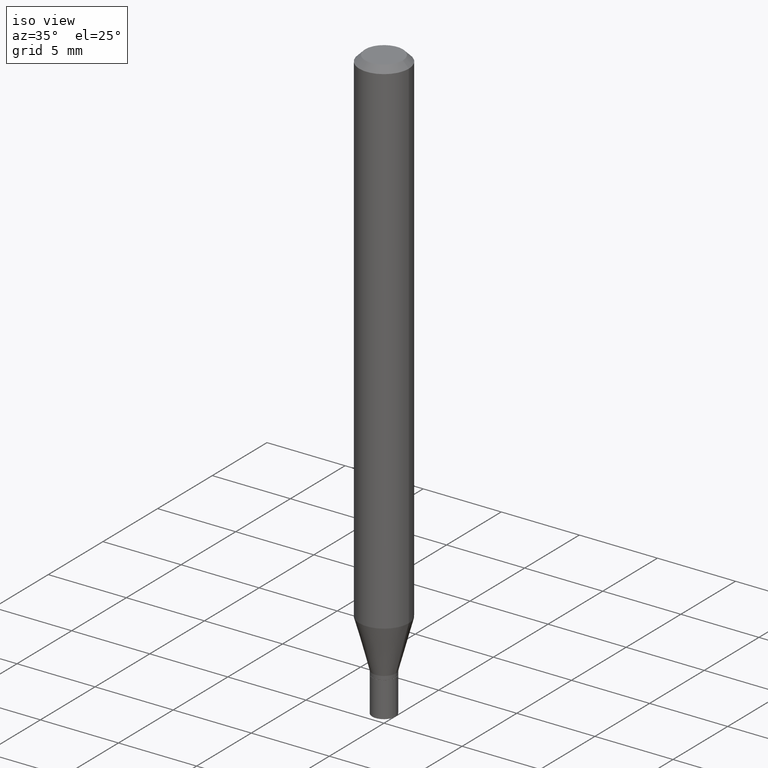
[diagram: clean part render]
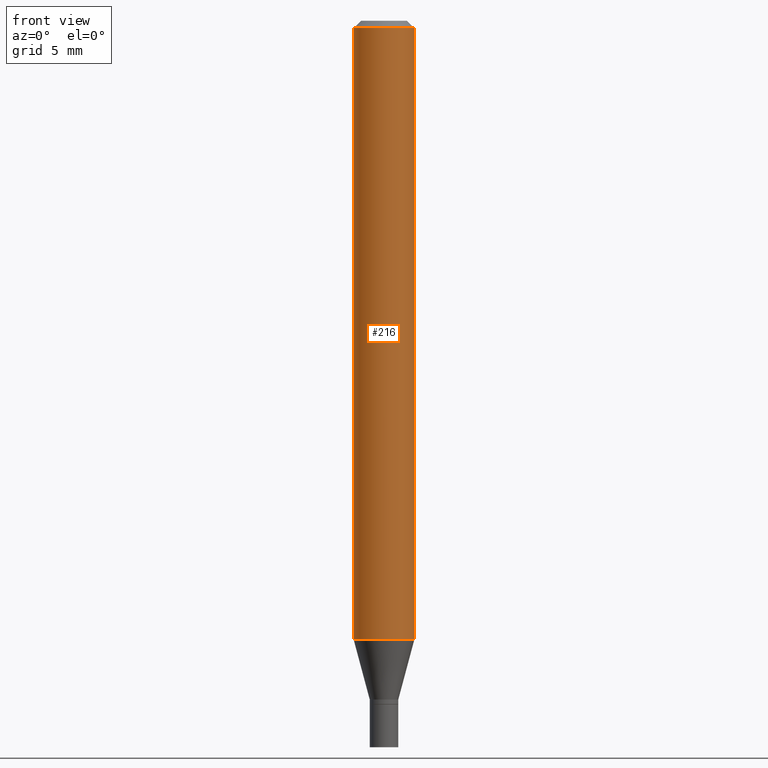
[diagram: tour spotlight — one face highlighted and labeled with its STEP entity id]
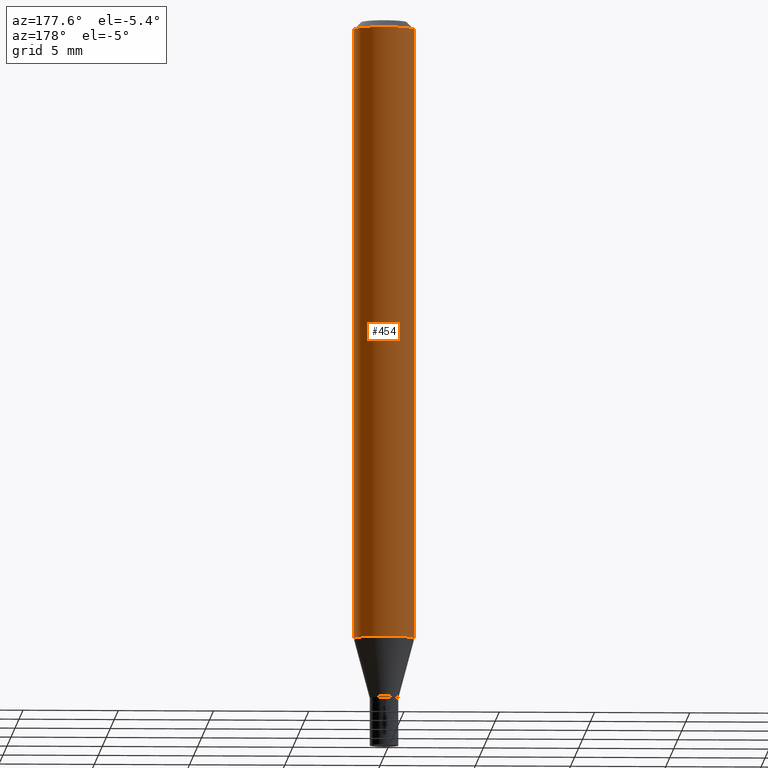
[diagram: tour spotlight — one face highlighted and labeled with its STEP entity id]
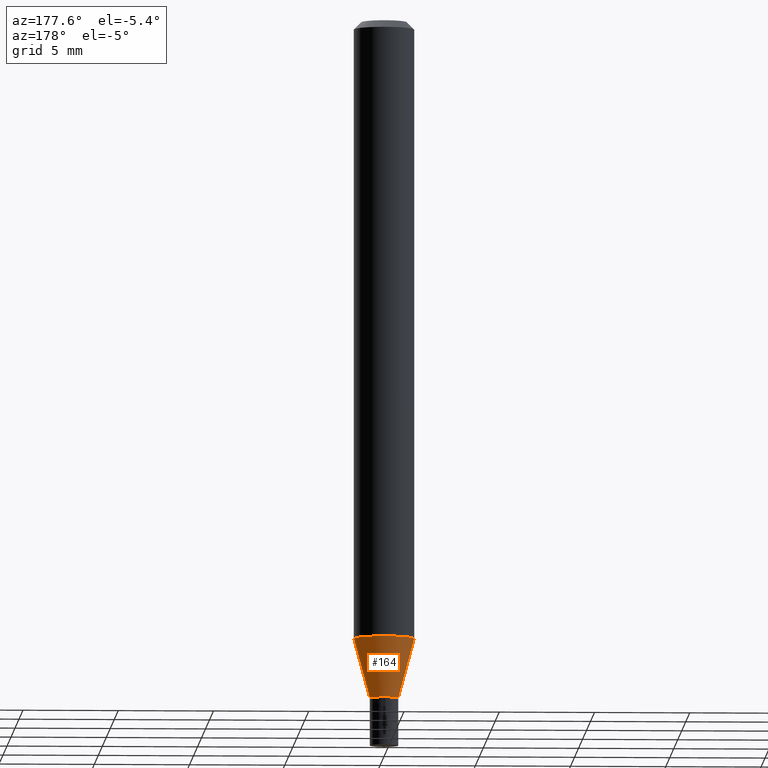
[diagram: tour spotlight — one face highlighted and labeled with its STEP entity id]
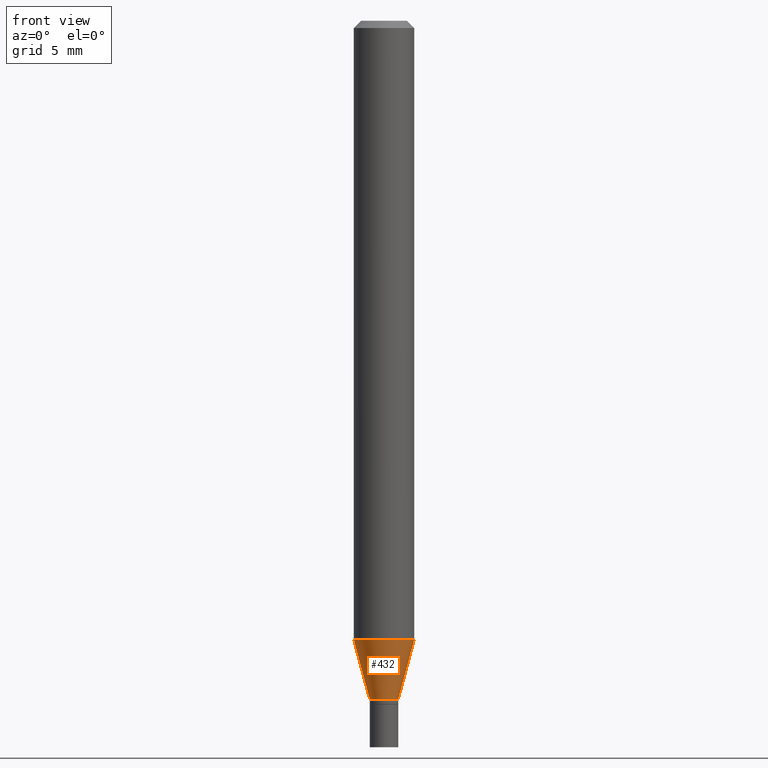
[diagram: tour spotlight — one face highlighted and labeled with its STEP entity id]
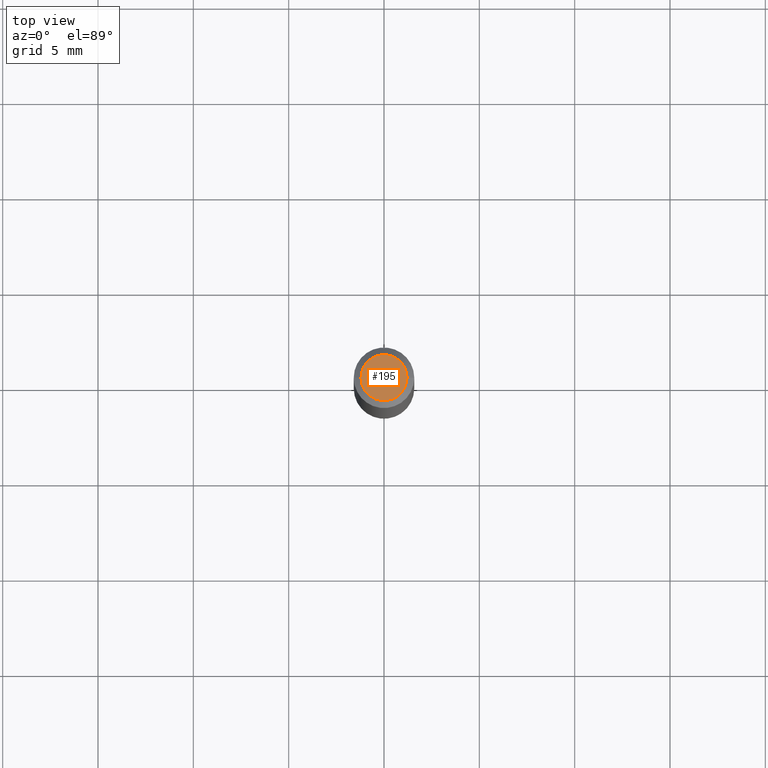
[diagram: tour spotlight — one face highlighted and labeled with its STEP entity id]
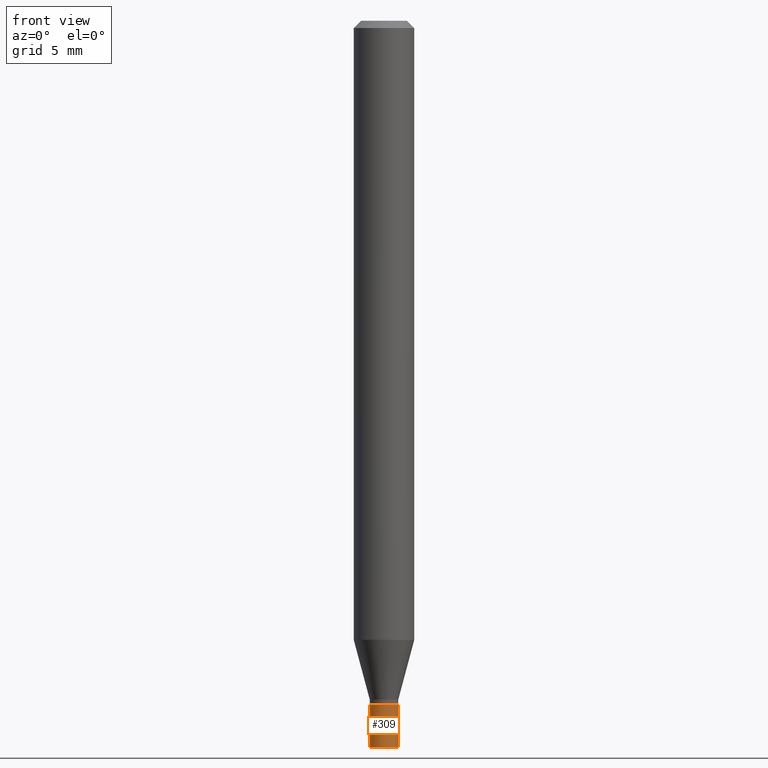
[diagram: tour spotlight — one face highlighted and labeled with its STEP entity id]
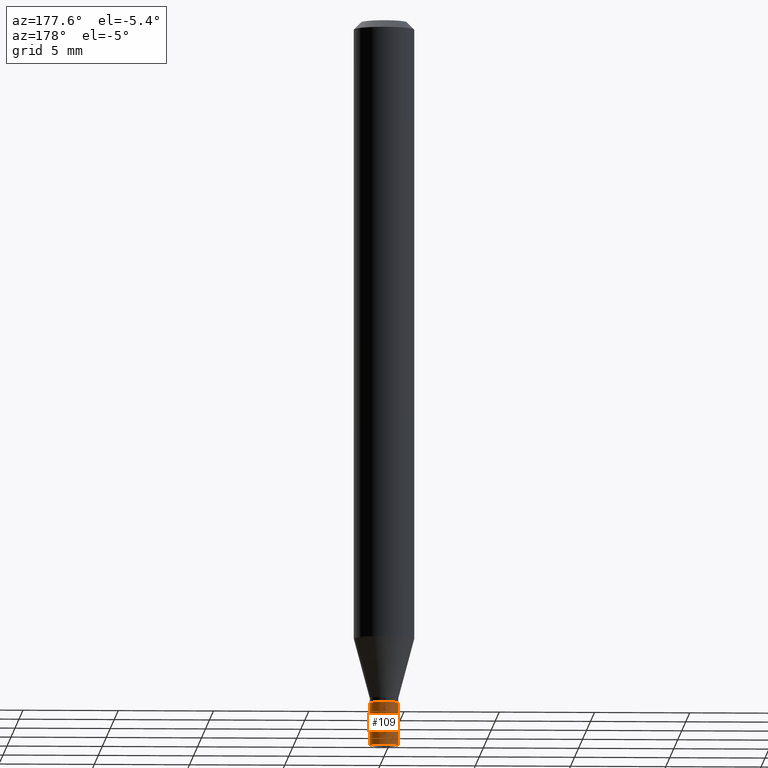
[diagram: tour spotlight — one face highlighted and labeled with its STEP entity id]
A machine part: a face-by-face anatomy tour. The part has 16 B-rep faces; the first image is the clean iso view, then the 7 largest visible faces are spotlighted one at a time (largest first), each with its STEP entity span.

Face 1 — front view, entity #216. In plain terms, the highlighted cylindrical surface (edge-blend (fillet) strip) has radius 1.5875 mm, axis along (-0, 0, 1).
Definition (entity closure, byte-faithful):
#4 = ORIENTED_EDGE ( 'NONE', *, *, #452, .T. ) ;
#14 = DIRECTION ( 'NONE',  ( -2.445468806185136597E-29, 3.491481338843145583E-15, 1.000000000000000000 ) ) ;
#26 = ORIENTED_EDGE ( 'NONE', *, *, #95, .T. ) ;
#27 = CARTESIAN_POINT ( 'NONE',  ( 3.668203209277705088E-31, -5.237222008264718399E-17, -0.01499999999999999944 ) ) ;
#44 = FACE_OUTER_BOUND ( 'NONE', #319, .T. ) ;
#53 = EDGE_CURVE ( 'NONE', #418, #227, #335, .T. ) ;
#63 = VECTOR ( 'NONE', #119, 39.37007874015748143 ) ;
#74 = AXIS2_PLACEMENT_3D ( 'NONE', #341, #14, #303 ) ;
#81 = CARTESIAN_POINT ( 'NONE',  ( -0.06250000000000000000, -4.019219156780646826E-15, -1.278342323350227350 ) ) ;
#95 = EDGE_CURVE ( 'NONE', #193, #170, #422, .T. ) ;
#106 = DIRECTION ( 'NONE',  ( 1.000000000000000000, -6.982962677686266711E-15, 0.000000000000000000 ) ) ;
#108 = CARTESIAN_POINT ( 'NONE',  ( 3.126146275379214659E-29, -4.463308366630709442E-15, -1.278342323350227350 ) ) ;
#110 = CARTESIAN_POINT ( 'NONE',  ( 0.06250000000000000000, -4.888073874380388472E-16, -0.01499999999999999944 ) ) ;
#111 = AXIS2_PLACEMENT_3D ( 'NONE', #108, #430, #256 ) ;
#119 = DIRECTION ( 'NONE',  ( -2.445468806185136877E-29, 3.491481338843145188E-15, 1.000000000000000000 ) ) ;
#121 = CARTESIAN_POINT ( 'NONE',  ( 0.06250000000000000000, -4.899743533986101112E-15, -1.278342323350227350 ) ) ;
#130 = AXIS2_PLACEMENT_3D ( 'NONE', #27, #179, #106 ) ;
#154 = CYLINDRICAL_SURFACE ( 'NONE', #74, 0.06250000000000000000 ) ;
#160 = LINE ( 'NONE', #342, #275 ) ;
#170 = VERTEX_POINT ( 'NONE', #121 ) ;
#172 = EDGE_CURVE ( 'NONE', #193, #418, #160, .T. ) ;
#174 = ORIENTED_EDGE ( 'NONE', *, *, #53, .F. ) ;
#179 = DIRECTION ( 'NONE',  ( -2.445468806185136597E-29, 3.491481338843145583E-15, 1.000000000000000000 ) ) ;
#193 = VERTEX_POINT ( 'NONE', #81 ) ;
#216 = ADVANCED_FACE ( 'NONE', ( #44 ), #154, .T. ) ;
#227 = VERTEX_POINT ( 'NONE', #110 ) ;
#245 = ORIENTED_EDGE ( 'NONE', *, *, #172, .F. ) ;
#254 = CARTESIAN_POINT ( 'NONE',  ( -0.06250000000000000000, -1.813751083506615842E-15, -0.01499999999999999944 ) ) ;
#256 = DIRECTION ( 'NONE',  ( 1.000000000000000000, -6.982962677686262766E-15, 0.000000000000000000 ) ) ;
#275 = VECTOR ( 'NONE', #370, 39.37007874015748143 ) ;
#301 = LINE ( 'NONE', #415, #63 ) ;
#303 = DIRECTION ( 'NONE',  ( 1.000000000000000000, -6.982962677686266711E-15, 4.876176775795935793E-29 ) ) ;
#319 = EDGE_LOOP ( 'NONE', ( #245, #26, #4, #174 ) ) ;
#335 = CIRCLE ( 'NONE', #130, 0.06250000000000000000 ) ;
#341 = CARTESIAN_POINT ( 'NONE',  ( 0.000000000000000000, 0.000000000000000000, 0.000000000000000000 ) ) ;
#342 = CARTESIAN_POINT ( 'NONE',  ( -0.06250000000000000000, 4.440892098500626162E-16, -3.074334431409316114E-30 ) ) ;
#370 = DIRECTION ( 'NONE',  ( -2.445468806185136877E-29, 3.491481338843145188E-15, 1.000000000000000000 ) ) ;
#415 = CARTESIAN_POINT ( 'NONE',  ( 0.06250000000000000000, -4.364351673553916694E-16, 3.047610484872459871E-30 ) ) ;
#418 = VERTEX_POINT ( 'NONE', #254 ) ;
#422 = CIRCLE ( 'NONE', #111, 0.06250000000000000000 ) ;
#430 = DIRECTION ( 'NONE',  ( -2.445468806185136597E-29, 3.491481338843145583E-15, 1.000000000000000000 ) ) ;
#452 = EDGE_CURVE ( 'NONE', #170, #227, #301, .T. ) ;

Face 2 — auxiliary view, entity #454. In plain terms, the highlighted cylindrical surface (edge-blend (fillet) strip) has radius 1.5875 mm, axis along (-0, 0, 1).
Definition (entity closure, byte-faithful):
#5 = EDGE_CURVE ( 'NONE', #227, #418, #371, .T. ) ;
#19 = CYLINDRICAL_SURFACE ( 'NONE', #295, 0.06250000000000000000 ) ;
#24 = ORIENTED_EDGE ( 'NONE', *, *, #209, .T. ) ;
#33 = CARTESIAN_POINT ( 'NONE',  ( 3.668203209277705088E-31, -5.237222008264718399E-17, -0.01499999999999999944 ) ) ;
#63 = VECTOR ( 'NONE', #119, 39.37007874015748143 ) ;
#69 = DIRECTION ( 'NONE',  ( 1.000000000000000000, -6.982962677686266711E-15, 0.000000000000000000 ) ) ;
#81 = CARTESIAN_POINT ( 'NONE',  ( -0.06250000000000000000, -4.019219156780646826E-15, -1.278342323350227350 ) ) ;
#91 = AXIS2_PLACEMENT_3D ( 'NONE', #196, #446, #238 ) ;
#92 = DIRECTION ( 'NONE',  ( -2.445468806185136597E-29, 3.491481338843145583E-15, 1.000000000000000000 ) ) ;
#93 = EDGE_LOOP ( 'NONE', ( #24, #283, #99, #353 ) ) ;
#99 = ORIENTED_EDGE ( 'NONE', *, *, #5, .F. ) ;
#110 = CARTESIAN_POINT ( 'NONE',  ( 0.06250000000000000000, -4.888073874380388472E-16, -0.01499999999999999944 ) ) ;
#119 = DIRECTION ( 'NONE',  ( -2.445468806185136877E-29, 3.491481338843145188E-15, 1.000000000000000000 ) ) ;
#121 = CARTESIAN_POINT ( 'NONE',  ( 0.06250000000000000000, -4.899743533986101112E-15, -1.278342323350227350 ) ) ;
#160 = LINE ( 'NONE', #342, #275 ) ;
#167 = AXIS2_PLACEMENT_3D ( 'NONE', #33, #322, #69 ) ;
#170 = VERTEX_POINT ( 'NONE', #121 ) ;
#172 = EDGE_CURVE ( 'NONE', #193, #418, #160, .T. ) ;
#193 = VERTEX_POINT ( 'NONE', #81 ) ;
#196 = CARTESIAN_POINT ( 'NONE',  ( 3.126146275379214659E-29, -4.463308366630709442E-15, -1.278342323350227350 ) ) ;
#209 = EDGE_CURVE ( 'NONE', #170, #193, #294, .T. ) ;
#227 = VERTEX_POINT ( 'NONE', #110 ) ;
#238 = DIRECTION ( 'NONE',  ( 1.000000000000000000, -6.982962677686262766E-15, 0.000000000000000000 ) ) ;
#254 = CARTESIAN_POINT ( 'NONE',  ( -0.06250000000000000000, -1.813751083506615842E-15, -0.01499999999999999944 ) ) ;
#272 = CARTESIAN_POINT ( 'NONE',  ( 0.000000000000000000, 0.000000000000000000, 0.000000000000000000 ) ) ;
#275 = VECTOR ( 'NONE', #370, 39.37007874015748143 ) ;
#283 = ORIENTED_EDGE ( 'NONE', *, *, #172, .T. ) ;
#294 = CIRCLE ( 'NONE', #91, 0.06250000000000000000 ) ;
#295 = AXIS2_PLACEMENT_3D ( 'NONE', #272, #92, #409 ) ;
#301 = LINE ( 'NONE', #415, #63 ) ;
#322 = DIRECTION ( 'NONE',  ( -2.445468806185136597E-29, 3.491481338843145583E-15, 1.000000000000000000 ) ) ;
#342 = CARTESIAN_POINT ( 'NONE',  ( -0.06250000000000000000, 4.440892098500626162E-16, -3.074334431409316114E-30 ) ) ;
#353 = ORIENTED_EDGE ( 'NONE', *, *, #452, .F. ) ;
#370 = DIRECTION ( 'NONE',  ( -2.445468806185136877E-29, 3.491481338843145188E-15, 1.000000000000000000 ) ) ;
#371 = CIRCLE ( 'NONE', #167, 0.06250000000000000000 ) ;
#380 = FACE_OUTER_BOUND ( 'NONE', #93, .T. ) ;
#409 = DIRECTION ( 'NONE',  ( 1.000000000000000000, -6.982962677686266711E-15, 4.876176775795935793E-29 ) ) ;
#415 = CARTESIAN_POINT ( 'NONE',  ( 0.06250000000000000000, -4.364351673553916694E-16, 3.047610484872459871E-30 ) ) ;
#418 = VERTEX_POINT ( 'NONE', #254 ) ;
#446 = DIRECTION ( 'NONE',  ( -2.445468806185136597E-29, 3.491481338843145583E-15, 1.000000000000000000 ) ) ;
#452 = EDGE_CURVE ( 'NONE', #170, #227, #301, .T. ) ;
#454 = ADVANCED_FACE ( 'NONE', ( #380 ), #19, .T. ) ;

Face 3 — auxiliary view, entity #164. In plain terms, the highlighted conical surface has half-angle 15 deg.
Definition (entity closure, byte-faithful):
#29 = EDGE_CURVE ( 'NONE', #279, #169, #414, .T. ) ;
#64 = DIRECTION ( 'NONE',  ( -2.445468806185136597E-29, 3.491481338843145583E-15, 1.000000000000000000 ) ) ;
#81 = CARTESIAN_POINT ( 'NONE',  ( -0.06250000000000000000, -4.019219156780646826E-15, -1.278342323350227350 ) ) ;
#91 = AXIS2_PLACEMENT_3D ( 'NONE', #196, #446, #238 ) ;
#121 = CARTESIAN_POINT ( 'NONE',  ( 0.06250000000000000000, -4.899743533986101112E-15, -1.278342323350227350 ) ) ;
#131 = ORIENTED_EDGE ( 'NONE', *, *, #314, .F. ) ;
#136 = AXIS2_PLACEMENT_3D ( 'NONE', #403, #300, #375 ) ;
#145 = DIRECTION ( 'NONE',  ( -0.2588190451025216832, 5.211531920934551831E-15, 0.9659258262890679791 ) ) ;
#148 = CARTESIAN_POINT ( 'NONE',  ( 3.427324531868468967E-29, -4.893311096388668563E-15, -1.401499999999999968 ) ) ;
#152 = LINE ( 'NONE', #296, #459 ) ;
#164 = ADVANCED_FACE ( 'NONE', ( #407 ), #343, .T. ) ;
#169 = VERTEX_POINT ( 'NONE', #308 ) ;
#170 = VERTEX_POINT ( 'NONE', #121 ) ;
#193 = VERTEX_POINT ( 'NONE', #81 ) ;
#196 = CARTESIAN_POINT ( 'NONE',  ( 3.126146275379214659E-29, -4.463308366630709442E-15, -1.278342323350227350 ) ) ;
#201 = AXIS2_PLACEMENT_3D ( 'NONE', #148, #64, #252 ) ;
#209 = EDGE_CURVE ( 'NONE', #170, #193, #294, .T. ) ;
#210 = ORIENTED_EDGE ( 'NONE', *, *, #29, .T. ) ;
#213 = EDGE_LOOP ( 'NONE', ( #210, #365, #420, #131 ) ) ;
#232 = EDGE_CURVE ( 'NONE', #169, #193, #396, .T. ) ;
#238 = DIRECTION ( 'NONE',  ( 1.000000000000000000, -6.982962677686262766E-15, 0.000000000000000000 ) ) ;
#252 = DIRECTION ( 'NONE',  ( 1.000000000000000000, -6.982962677686268288E-15, 0.000000000000000000 ) ) ;
#262 = DIRECTION ( 'NONE',  ( 0.2588190451025216832, 1.565188264969619798E-15, 0.9659258262890679791 ) ) ;
#279 = VERTEX_POINT ( 'NONE', #336 ) ;
#294 = CIRCLE ( 'NONE', #91, 0.06250000000000000000 ) ;
#296 = CARTESIAN_POINT ( 'NONE',  ( 0.02949999999999992559, -5.099308495380413084E-15, -1.401499999999999968 ) ) ;
#300 = DIRECTION ( 'NONE',  ( -2.445468806185136597E-29, 3.491481338843145583E-15, 1.000000000000000000 ) ) ;
#308 = CARTESIAN_POINT ( 'NONE',  ( -0.02949999999999992559, -4.351460073060043416E-15, -1.401499999999999968 ) ) ;
#314 = EDGE_CURVE ( 'NONE', #279, #170, #152, .T. ) ;
#331 = CARTESIAN_POINT ( 'NONE',  ( -0.02949999999999992559, -4.683700989339440005E-15, -1.401499999999999968 ) ) ;
#336 = CARTESIAN_POINT ( 'NONE',  ( 0.02949999999999992559, -5.099308495380413084E-15, -1.401499999999999968 ) ) ;
#343 = CONICAL_SURFACE ( 'NONE', #136, 0.02949999999999992559, 0.2617993877991502960 ) ;
#344 = VECTOR ( 'NONE', #145, 39.37007874015748143 ) ;
#365 = ORIENTED_EDGE ( 'NONE', *, *, #232, .T. ) ;
#375 = DIRECTION ( 'NONE',  ( 1.000000000000000000, -6.982962677686268288E-15, 0.000000000000000000 ) ) ;
#396 = LINE ( 'NONE', #331, #344 ) ;
#403 = CARTESIAN_POINT ( 'NONE',  ( 3.427324531868468967E-29, -4.893311096388668563E-15, -1.401499999999999968 ) ) ;
#407 = FACE_OUTER_BOUND ( 'NONE', #213, .T. ) ;
#414 = CIRCLE ( 'NONE', #201, 0.02949999999999992559 ) ;
#420 = ORIENTED_EDGE ( 'NONE', *, *, #209, .F. ) ;
#446 = DIRECTION ( 'NONE',  ( -2.445468806185136597E-29, 3.491481338843145583E-15, 1.000000000000000000 ) ) ;
#459 = VECTOR ( 'NONE', #262, 39.37007874015748143 ) ;

Face 4 — front view, entity #432. In plain terms, the highlighted conical surface has half-angle 15 deg.
Definition (entity closure, byte-faithful):
#1 = CARTESIAN_POINT ( 'NONE',  ( 3.427324531868468967E-29, -4.893311096388668563E-15, -1.401499999999999968 ) ) ;
#37 = ORIENTED_EDGE ( 'NONE', *, *, #314, .T. ) ;
#45 = CARTESIAN_POINT ( 'NONE',  ( 3.427324531868468967E-29, -4.893311096388668563E-15, -1.401499999999999968 ) ) ;
#52 = FACE_OUTER_BOUND ( 'NONE', #135, .T. ) ;
#81 = CARTESIAN_POINT ( 'NONE',  ( -0.06250000000000000000, -4.019219156780646826E-15, -1.278342323350227350 ) ) ;
#95 = EDGE_CURVE ( 'NONE', #193, #170, #422, .T. ) ;
#108 = CARTESIAN_POINT ( 'NONE',  ( 3.126146275379214659E-29, -4.463308366630709442E-15, -1.278342323350227350 ) ) ;
#111 = AXIS2_PLACEMENT_3D ( 'NONE', #108, #430, #256 ) ;
#121 = CARTESIAN_POINT ( 'NONE',  ( 0.06250000000000000000, -4.899743533986101112E-15, -1.278342323350227350 ) ) ;
#129 = DIRECTION ( 'NONE',  ( 1.000000000000000000, -6.982962677686268288E-15, 0.000000000000000000 ) ) ;
#135 = EDGE_LOOP ( 'NONE', ( #248, #264, #37, #315 ) ) ;
#145 = DIRECTION ( 'NONE',  ( -0.2588190451025216832, 5.211531920934551831E-15, 0.9659258262890679791 ) ) ;
#152 = LINE ( 'NONE', #296, #459 ) ;
#163 = DIRECTION ( 'NONE',  ( -2.445468806185136597E-29, 3.491481338843145583E-15, 1.000000000000000000 ) ) ;
#169 = VERTEX_POINT ( 'NONE', #308 ) ;
#170 = VERTEX_POINT ( 'NONE', #121 ) ;
#193 = VERTEX_POINT ( 'NONE', #81 ) ;
#232 = EDGE_CURVE ( 'NONE', #169, #193, #396, .T. ) ;
#248 = ORIENTED_EDGE ( 'NONE', *, *, #232, .F. ) ;
#256 = DIRECTION ( 'NONE',  ( 1.000000000000000000, -6.982962677686262766E-15, 0.000000000000000000 ) ) ;
#262 = DIRECTION ( 'NONE',  ( 0.2588190451025216832, 1.565188264969619798E-15, 0.9659258262890679791 ) ) ;
#264 = ORIENTED_EDGE ( 'NONE', *, *, #306, .T. ) ;
#265 = DIRECTION ( 'NONE',  ( 1.000000000000000000, -6.982962677686268288E-15, 0.000000000000000000 ) ) ;
#276 = CIRCLE ( 'NONE', #416, 0.02949999999999992559 ) ;
#279 = VERTEX_POINT ( 'NONE', #336 ) ;
#292 = DIRECTION ( 'NONE',  ( -2.445468806185136597E-29, 3.491481338843145583E-15, 1.000000000000000000 ) ) ;
#296 = CARTESIAN_POINT ( 'NONE',  ( 0.02949999999999992559, -5.099308495380413084E-15, -1.401499999999999968 ) ) ;
#306 = EDGE_CURVE ( 'NONE', #169, #279, #276, .T. ) ;
#308 = CARTESIAN_POINT ( 'NONE',  ( -0.02949999999999992559, -4.351460073060043416E-15, -1.401499999999999968 ) ) ;
#314 = EDGE_CURVE ( 'NONE', #279, #170, #152, .T. ) ;
#315 = ORIENTED_EDGE ( 'NONE', *, *, #95, .F. ) ;
#331 = CARTESIAN_POINT ( 'NONE',  ( -0.02949999999999992559, -4.683700989339440005E-15, -1.401499999999999968 ) ) ;
#336 = CARTESIAN_POINT ( 'NONE',  ( 0.02949999999999992559, -5.099308495380413084E-15, -1.401499999999999968 ) ) ;
#344 = VECTOR ( 'NONE', #145, 39.37007874015748143 ) ;
#381 = CONICAL_SURFACE ( 'NONE', #423, 0.02949999999999992559, 0.2617993877991502960 ) ;
#396 = LINE ( 'NONE', #331, #344 ) ;
#416 = AXIS2_PLACEMENT_3D ( 'NONE', #1, #292, #265 ) ;
#422 = CIRCLE ( 'NONE', #111, 0.06250000000000000000 ) ;
#423 = AXIS2_PLACEMENT_3D ( 'NONE', #45, #163, #129 ) ;
#430 = DIRECTION ( 'NONE',  ( -2.445468806185136597E-29, 3.491481338843145583E-15, 1.000000000000000000 ) ) ;
#432 = ADVANCED_FACE ( 'NONE', ( #52 ), #381, .T. ) ;
#459 = VECTOR ( 'NONE', #262, 39.37007874015748143 ) ;

Face 5 — top view, entity #195. In plain terms, the highlighted planar face has unit normal (0, -0, -1).
Definition (entity closure, byte-faithful):
#54 = EDGE_LOOP ( 'NONE', ( #60, #77 ) ) ;
#60 = ORIENTED_EDGE ( 'NONE', *, *, #104, .T. ) ;
#67 = DIRECTION ( 'NONE',  ( 1.000000000000000000, -6.982962677686267499E-15, 4.852736867747366768E-29 ) ) ;
#77 = ORIENTED_EDGE ( 'NONE', *, *, #83, .T. ) ;
#83 = EDGE_CURVE ( 'NONE', #317, #173, #286, .T. ) ;
#87 = DIRECTION ( 'NONE',  ( -1.000000000000000000, 6.982962677686265922E-15, -4.876176775795935793E-29 ) ) ;
#103 = DIRECTION ( 'NONE',  ( 1.000000000000000000, -6.982962677686267499E-15, 4.852736867747366768E-29 ) ) ;
#104 = EDGE_CURVE ( 'NONE', #173, #317, #349, .T. ) ;
#117 = DIRECTION ( 'NONE',  ( 2.438088387897960049E-29, -3.491481338843145188E-15, -1.000000000000000000 ) ) ;
#144 = DIRECTION ( 'NONE',  ( -2.445468806185136597E-29, 3.491481338843145583E-15, 1.000000000000000000 ) ) ;
#173 = VERTEX_POINT ( 'NONE', #267 ) ;
#189 = DIRECTION ( 'NONE',  ( -2.445468806185136597E-29, 3.491481338843145583E-15, 1.000000000000000000 ) ) ;
#195 = ADVANCED_FACE ( 'NONE', ( #297 ), #404, .F. ) ;
#206 = AXIS2_PLACEMENT_3D ( 'NONE', #440, #117, #87 ) ;
#267 = CARTESIAN_POINT ( 'NONE',  ( -0.04749999999999999362, 3.578768372314206562E-16, -2.491828921680056300E-16 ) ) ;
#286 = CIRCLE ( 'NONE', #362, 0.04749999999999999362 ) ;
#297 = FACE_OUTER_BOUND ( 'NONE', #54, .T. ) ;
#317 = VERTEX_POINT ( 'NONE', #439 ) ;
#349 = CIRCLE ( 'NONE', #437, 0.04749999999999999362 ) ;
#362 = AXIS2_PLACEMENT_3D ( 'NONE', #434, #144, #103 ) ;
#395 = CARTESIAN_POINT ( 'NONE',  ( 6.093689898318465335E-45, -8.700174179635472181E-31, -2.491828921680032634E-16 ) ) ;
#404 = PLANE ( 'NONE',  #206 ) ;
#434 = CARTESIAN_POINT ( 'NONE',  ( 6.093689898318465335E-45, -8.700174179635472181E-31, -2.491828921680032634E-16 ) ) ;
#437 = AXIS2_PLACEMENT_3D ( 'NONE', #395, #189, #67 ) ;
#439 = CARTESIAN_POINT ( 'NONE',  ( 0.04749999999999999362, -4.035134999187582567E-16, -2.491828921680006996E-16 ) ) ;
#440 = CARTESIAN_POINT ( 'NONE',  ( 3.316907271900976096E-16, 0.04749999999999999362, -2.904368096790510281E-16 ) ) ;

Face 6 — front view, entity #309. In plain terms, the highlighted cylindrical surface (edge-blend (fillet) strip) has radius 0.7493 mm, axis along (-0, 0, 1).
Definition (entity closure, byte-faithful):
#6 = CARTESIAN_POINT ( 'NONE',  ( -0.02949999999999999845, -4.873113851971679848E-15, -1.500000000000000222 ) ) ;
#12 = DIRECTION ( 'NONE',  ( 1.000000000000000000, -6.982962677686250933E-15, 0.000000000000000000 ) ) ;
#17 = DIRECTION ( 'NONE',  ( -2.445468806185136877E-29, 3.491481338843145188E-15, 1.000000000000000000 ) ) ;
#28 = CARTESIAN_POINT ( 'NONE',  ( -0.02949999999999999845, 2.096101070492295438E-16, -1.451085851625197166E-30 ) ) ;
#43 = CIRCLE ( 'NONE', #269, 0.02949999999999999845 ) ;
#62 = AXIS2_PLACEMENT_3D ( 'NONE', #192, #337, #12 ) ;
#68 = CARTESIAN_POINT ( 'NONE',  ( 0.02949999999999999845, -5.134223308768844733E-15, -1.411500000000000199 ) ) ;
#71 = LINE ( 'NONE', #28, #438 ) ;
#75 = CARTESIAN_POINT ( 'NONE',  ( 0.02949999999999999845, -2.059973989917448413E-16, 1.438472148859800975E-30 ) ) ;
#133 = EDGE_LOOP ( 'NONE', ( #386, #139, #346, #461 ) ) ;
#138 = EDGE_CURVE ( 'NONE', #424, #359, #397, .T. ) ;
#139 = ORIENTED_EDGE ( 'NONE', *, *, #388, .T. ) ;
#149 = DIRECTION ( 'NONE',  ( 1.000000000000000000, -6.982962677686265922E-15, 4.876176775795935793E-29 ) ) ;
#184 = CARTESIAN_POINT ( 'NONE',  ( 0.02949999999999999845, -5.443219407256462698E-15, -1.500000000000000222 ) ) ;
#190 = CYLINDRICAL_SURFACE ( 'NONE', #233, 0.02949999999999999845 ) ;
#192 = CARTESIAN_POINT ( 'NONE',  ( 3.451779219930320513E-29, -4.928225909777100212E-15, -1.411500000000000199 ) ) ;
#214 = EDGE_CURVE ( 'NONE', #458, #359, #354, .T. ) ;
#226 = DIRECTION ( 'NONE',  ( -2.445468806185136877E-29, 3.491481338843145188E-15, 1.000000000000000000 ) ) ;
#233 = AXIS2_PLACEMENT_3D ( 'NONE', #288, #435, #149 ) ;
#269 = AXIS2_PLACEMENT_3D ( 'NONE', #329, #298, #400 ) ;
#288 = CARTESIAN_POINT ( 'NONE',  ( 0.000000000000000000, 0.000000000000000000, 0.000000000000000000 ) ) ;
#289 = VERTEX_POINT ( 'NONE', #6 ) ;
#298 = DIRECTION ( 'NONE',  ( -2.445468806185136597E-29, 3.491481338843145583E-15, 1.000000000000000000 ) ) ;
#309 = ADVANCED_FACE ( 'NONE', ( #402 ), #190, .T. ) ;
#311 = CARTESIAN_POINT ( 'NONE',  ( -0.02949999999999999845, -4.873113851971679848E-15, -1.411500000000000199 ) ) ;
#329 = CARTESIAN_POINT ( 'NONE',  ( 3.668203209277704895E-29, -5.237222008264718177E-15, -1.500000000000000222 ) ) ;
#337 = DIRECTION ( 'NONE',  ( -2.445468806185136597E-29, 3.491481338843145583E-15, 1.000000000000000000 ) ) ;
#346 = ORIENTED_EDGE ( 'NONE', *, *, #138, .T. ) ;
#354 = CIRCLE ( 'NONE', #62, 0.02949999999999999845 ) ;
#359 = VERTEX_POINT ( 'NONE', #68 ) ;
#386 = ORIENTED_EDGE ( 'NONE', *, *, #413, .F. ) ;
#388 = EDGE_CURVE ( 'NONE', #289, #424, #43, .T. ) ;
#397 = LINE ( 'NONE', #75, #447 ) ;
#400 = DIRECTION ( 'NONE',  ( 1.000000000000000000, -6.982962677686250933E-15, 0.000000000000000000 ) ) ;
#402 = FACE_OUTER_BOUND ( 'NONE', #133, .T. ) ;
#413 = EDGE_CURVE ( 'NONE', #289, #458, #71, .T. ) ;
#424 = VERTEX_POINT ( 'NONE', #184 ) ;
#435 = DIRECTION ( 'NONE',  ( -2.445468806185136597E-29, 3.491481338843145583E-15, 1.000000000000000000 ) ) ;
#438 = VECTOR ( 'NONE', #226, 39.37007874015748143 ) ;
#447 = VECTOR ( 'NONE', #17, 39.37007874015748143 ) ;
#458 = VERTEX_POINT ( 'NONE', #311 ) ;
#461 = ORIENTED_EDGE ( 'NONE', *, *, #214, .F. ) ;

Face 7 — auxiliary view, entity #109. In plain terms, the highlighted cylindrical surface (edge-blend (fillet) strip) has radius 0.7493 mm, axis along (-0, 0, 1).
Definition (entity closure, byte-faithful):
#2 = DIRECTION ( 'NONE',  ( 1.000000000000000000, -6.982962677686265922E-15, 4.876176775795935793E-29 ) ) ;
#6 = CARTESIAN_POINT ( 'NONE',  ( -0.02949999999999999845, -4.873113851971679848E-15, -1.500000000000000222 ) ) ;
#17 = DIRECTION ( 'NONE',  ( -2.445468806185136877E-29, 3.491481338843145188E-15, 1.000000000000000000 ) ) ;
#28 = CARTESIAN_POINT ( 'NONE',  ( -0.02949999999999999845, 2.096101070492295438E-16, -1.451085851625197166E-30 ) ) ;
#39 = DIRECTION ( 'NONE',  ( 1.000000000000000000, -6.982962677686250933E-15, 0.000000000000000000 ) ) ;
#42 = DIRECTION ( 'NONE',  ( 1.000000000000000000, -6.982962677686250933E-15, 0.000000000000000000 ) ) ;
#47 = EDGE_CURVE ( 'NONE', #424, #289, #464, .T. ) ;
#68 = CARTESIAN_POINT ( 'NONE',  ( 0.02949999999999999845, -5.134223308768844733E-15, -1.411500000000000199 ) ) ;
#71 = LINE ( 'NONE', #28, #438 ) ;
#72 = AXIS2_PLACEMENT_3D ( 'NONE', #334, #328, #2 ) ;
#75 = CARTESIAN_POINT ( 'NONE',  ( 0.02949999999999999845, -2.059973989917448413E-16, 1.438472148859800975E-30 ) ) ;
#96 = ORIENTED_EDGE ( 'NONE', *, *, #47, .T. ) ;
#109 = ADVANCED_FACE ( 'NONE', ( #182 ), #218, .T. ) ;
#114 = CARTESIAN_POINT ( 'NONE',  ( 3.668203209277704895E-29, -5.237222008264718177E-15, -1.500000000000000222 ) ) ;
#138 = EDGE_CURVE ( 'NONE', #424, #359, #397, .T. ) ;
#151 = DIRECTION ( 'NONE',  ( -2.445468806185136597E-29, 3.491481338843145583E-15, 1.000000000000000000 ) ) ;
#182 = FACE_OUTER_BOUND ( 'NONE', #352, .T. ) ;
#183 = EDGE_CURVE ( 'NONE', #359, #458, #398, .T. ) ;
#184 = CARTESIAN_POINT ( 'NONE',  ( 0.02949999999999999845, -5.443219407256462698E-15, -1.500000000000000222 ) ) ;
#218 = CYLINDRICAL_SURFACE ( 'NONE', #72, 0.02949999999999999845 ) ;
#225 = ORIENTED_EDGE ( 'NONE', *, *, #138, .F. ) ;
#226 = DIRECTION ( 'NONE',  ( -2.445468806185136877E-29, 3.491481338843145188E-15, 1.000000000000000000 ) ) ;
#261 = AXIS2_PLACEMENT_3D ( 'NONE', #377, #151, #42 ) ;
#289 = VERTEX_POINT ( 'NONE', #6 ) ;
#305 = AXIS2_PLACEMENT_3D ( 'NONE', #114, #466, #39 ) ;
#311 = CARTESIAN_POINT ( 'NONE',  ( -0.02949999999999999845, -4.873113851971679848E-15, -1.411500000000000199 ) ) ;
#316 = ORIENTED_EDGE ( 'NONE', *, *, #413, .T. ) ;
#328 = DIRECTION ( 'NONE',  ( -2.445468806185136597E-29, 3.491481338843145583E-15, 1.000000000000000000 ) ) ;
#334 = CARTESIAN_POINT ( 'NONE',  ( 0.000000000000000000, 0.000000000000000000, 0.000000000000000000 ) ) ;
#338 = ORIENTED_EDGE ( 'NONE', *, *, #183, .F. ) ;
#352 = EDGE_LOOP ( 'NONE', ( #96, #316, #338, #225 ) ) ;
#359 = VERTEX_POINT ( 'NONE', #68 ) ;
#377 = CARTESIAN_POINT ( 'NONE',  ( 3.451779219930320513E-29, -4.928225909777100212E-15, -1.411500000000000199 ) ) ;
#397 = LINE ( 'NONE', #75, #447 ) ;
#398 = CIRCLE ( 'NONE', #261, 0.02949999999999999845 ) ;
#413 = EDGE_CURVE ( 'NONE', #289, #458, #71, .T. ) ;
#424 = VERTEX_POINT ( 'NONE', #184 ) ;
#438 = VECTOR ( 'NONE', #226, 39.37007874015748143 ) ;
#447 = VECTOR ( 'NONE', #17, 39.37007874015748143 ) ;
#458 = VERTEX_POINT ( 'NONE', #311 ) ;
#464 = CIRCLE ( 'NONE', #305, 0.02949999999999999845 ) ;
#466 = DIRECTION ( 'NONE',  ( -2.445468806185136597E-29, 3.491481338843145583E-15, 1.000000000000000000 ) ) ;